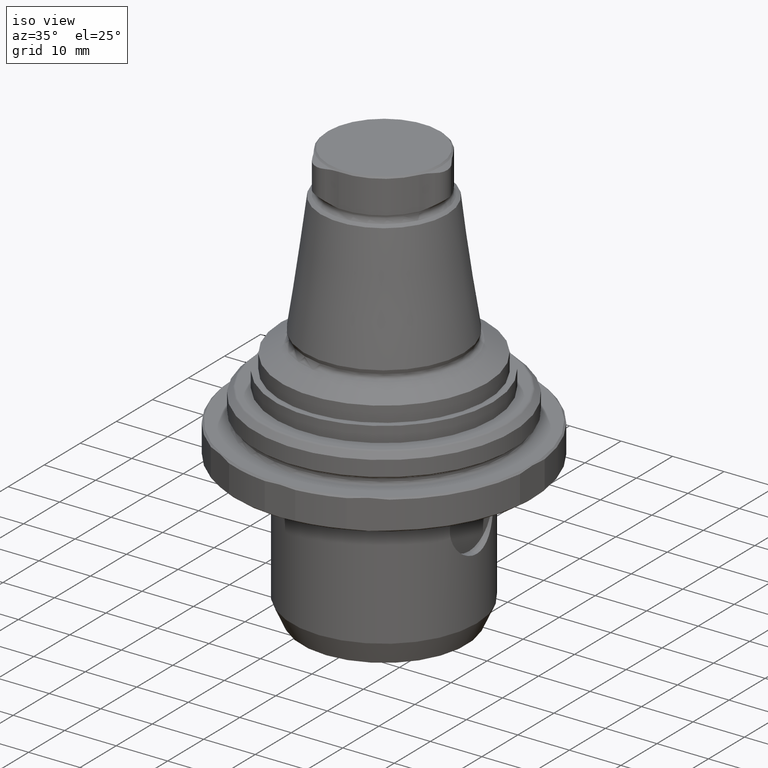
[diagram: clean part render]
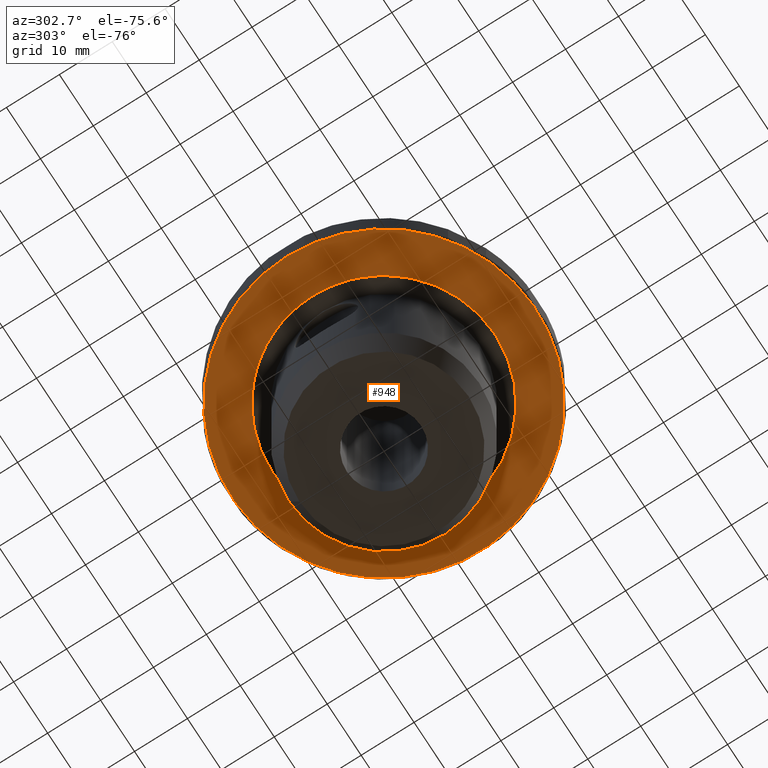
[diagram: tour spotlight — one face highlighted and labeled with its STEP entity id]
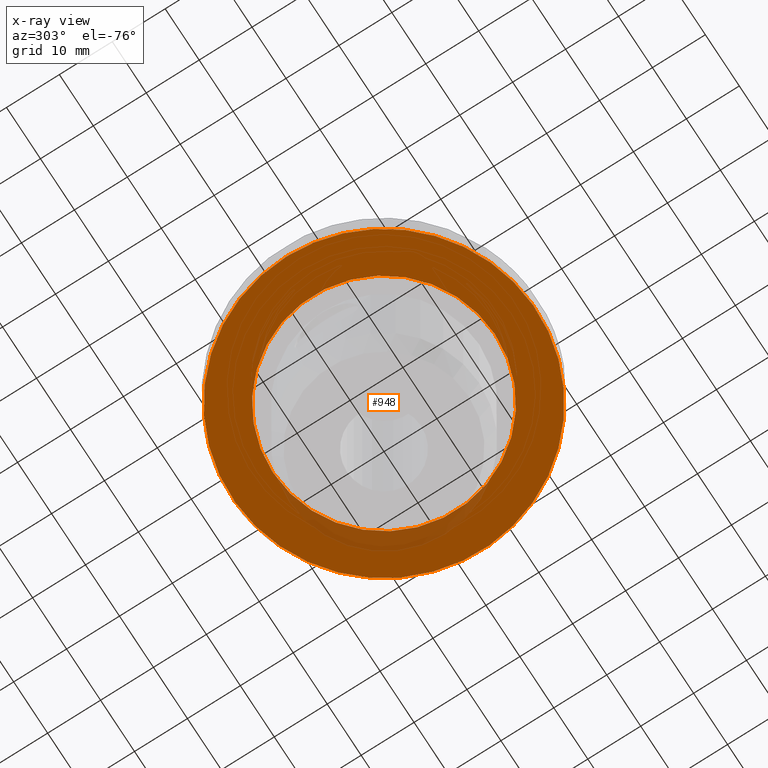
[diagram: x-ray of the same camera — body ghosted, this tour face saturated]
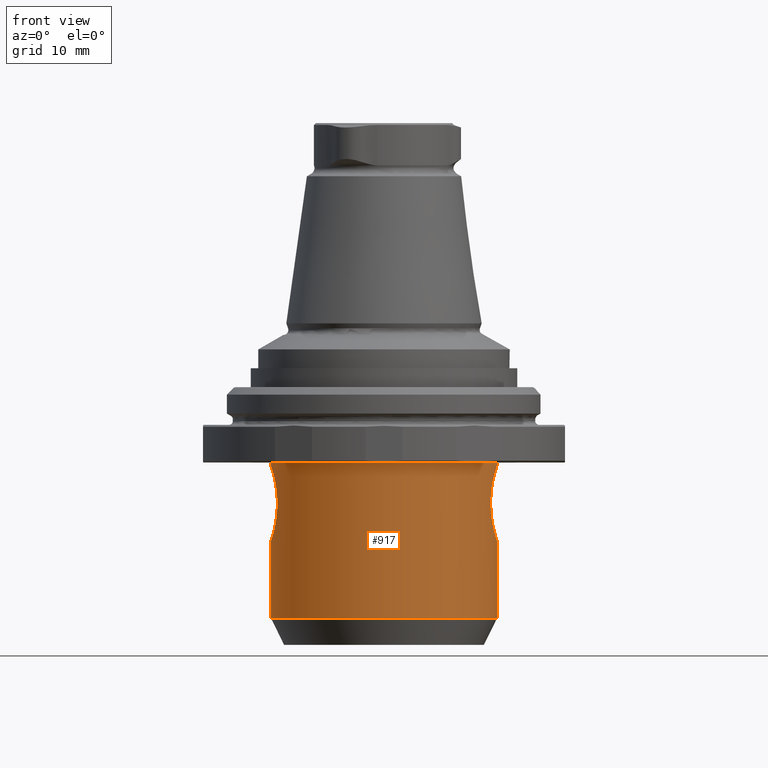
[diagram: tour spotlight — one face highlighted and labeled with its STEP entity id]
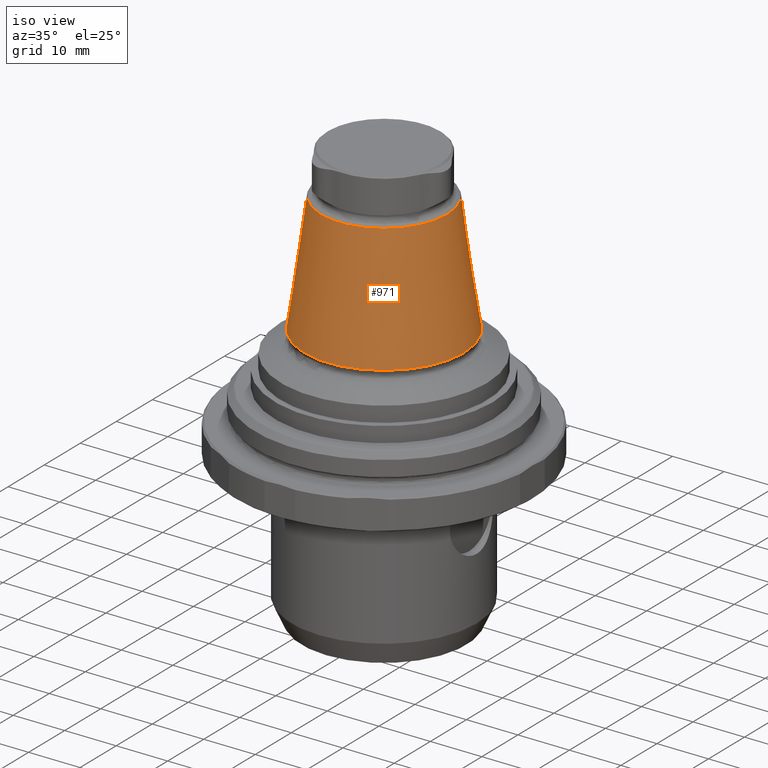
[diagram: tour spotlight — one face highlighted and labeled with its STEP entity id]
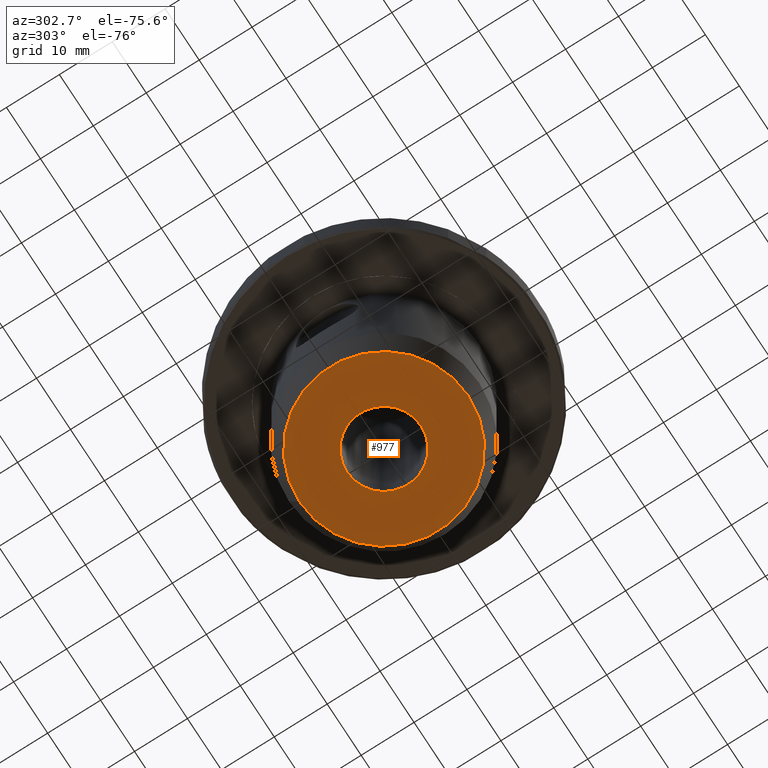
[diagram: tour spotlight — one face highlighted and labeled with its STEP entity id]
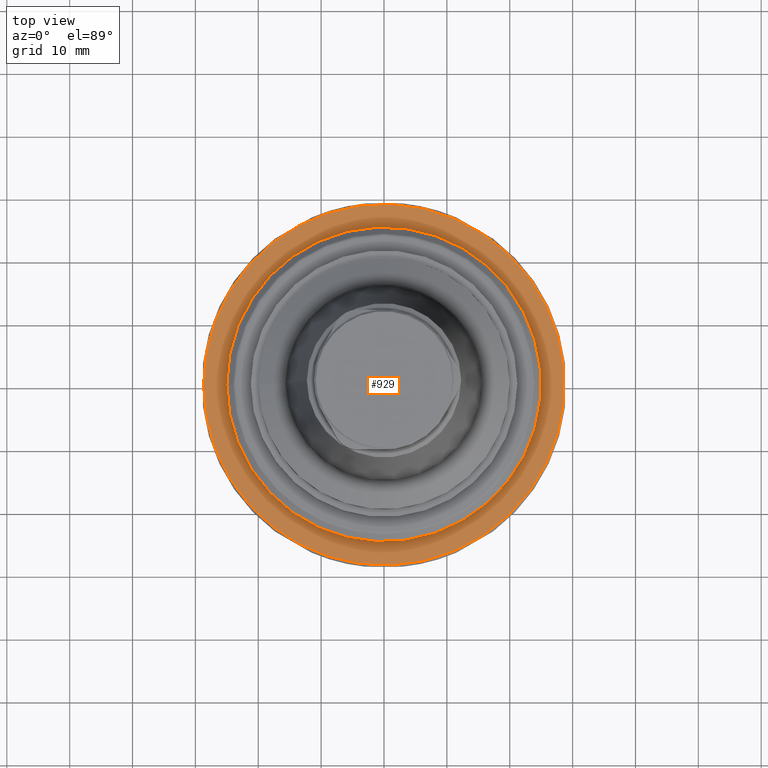
[diagram: tour spotlight — one face highlighted and labeled with its STEP entity id]
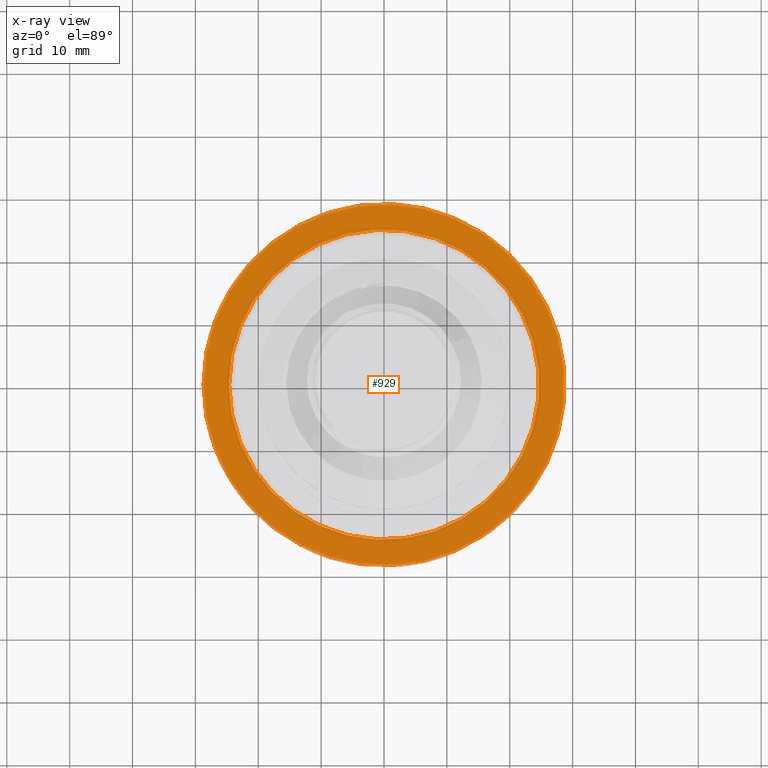
[diagram: x-ray of the same camera — body ghosted, this tour face saturated]
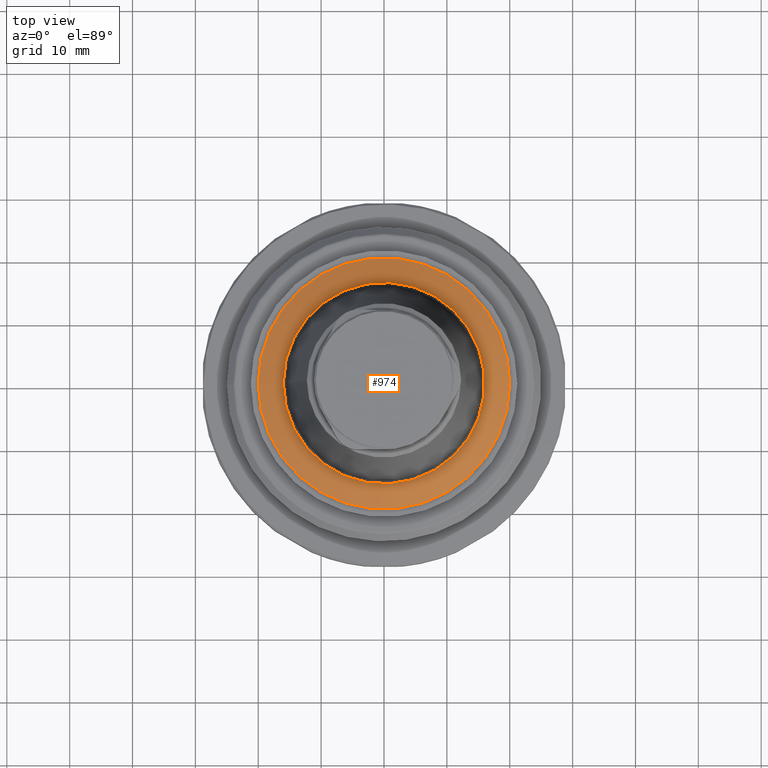
[diagram: tour spotlight — one face highlighted and labeled with its STEP entity id]
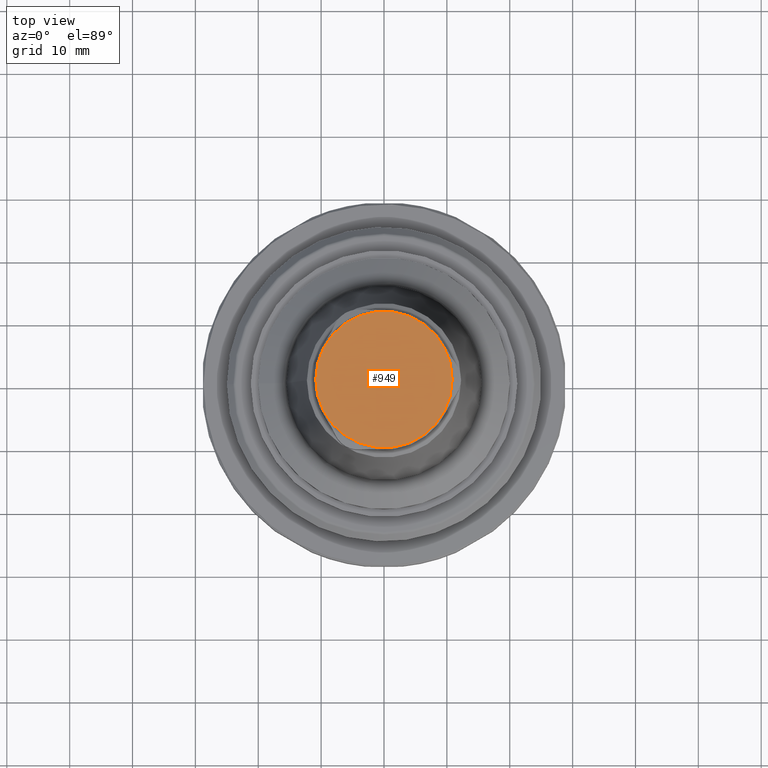
[diagram: tour spotlight — one face highlighted and labeled with its STEP entity id]
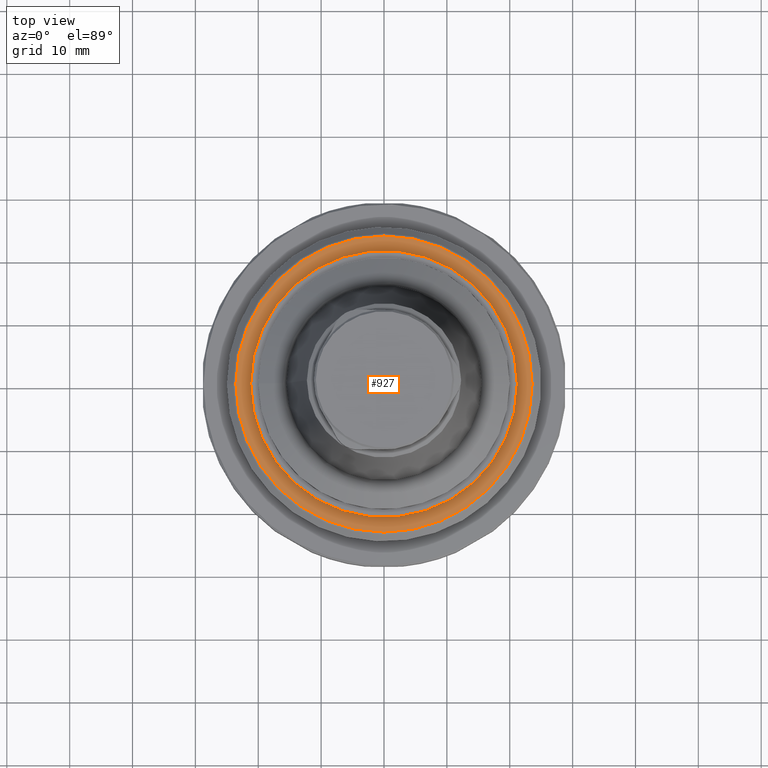
[diagram: tour spotlight — one face highlighted and labeled with its STEP entity id]
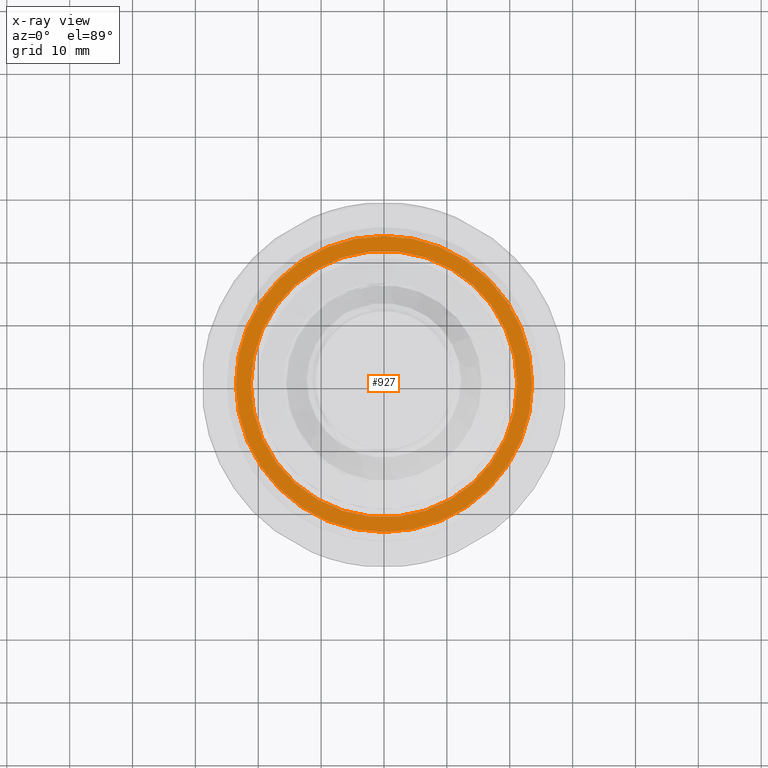
[diagram: x-ray of the same camera — body ghosted, this tour face saturated]
A machine part: a face-by-face anatomy tour. The part has 68 B-rep faces; the first image is the clean iso view, then the 8 largest visible faces are spotlighted one at a time (largest first), each with its STEP entity span.

Face 1 — auxiliary view, entity #948. An x-ray twin of the same camera follows (body ghosted, this face saturated) — the face is partly hidden behind the body. In plain terms, the highlighted planar face has unit normal (0, 0, 1).
Definition (entity closure, byte-faithful):
#87=PLANE('',#1061);
#147=CIRCLE('',#1060,28.7);
#148=CIRCLE('',#1062,21.0040707856479);
#299=ORIENTED_EDGE('',*,*,#493,.F.);
#300=ORIENTED_EDGE('',*,*,#492,.T.);
#492=EDGE_CURVE('',#603,#603,#147,.T.);
#493=EDGE_CURVE('',#604,#604,#148,.F.);
#603=VERTEX_POINT('',#1634);
#604=VERTEX_POINT('',#1637);
#737=EDGE_LOOP('',(#299));
#738=EDGE_LOOP('',(#300));
#837=FACE_BOUND('',#737,.T.);
#838=FACE_BOUND('',#738,.T.);
#948=ADVANCED_FACE('',(#837,#838),#87,.F.);
#1060=AXIS2_PLACEMENT_3D('',#1633,#1265,#1266);
#1061=AXIS2_PLACEMENT_3D('',#1635,#1267,#1268);
#1062=AXIS2_PLACEMENT_3D('',#1636,#1269,#1270);
#1265=DIRECTION('',(-5.20001084984554E-33,-4.76419527885826E-18,-1.));
#1266=DIRECTION('',(-1.,0.,0.));
#1267=DIRECTION('',(5.20001084984554E-33,4.76419527885826E-18,1.));
#1268=DIRECTION('',(1.,0.,0.));
#1269=DIRECTION('',(5.20001084984554E-33,4.76419527885826E-18,1.));
#1270=DIRECTION('',(0.,-1.,4.76419527885826E-18));
#1633=CARTESIAN_POINT('',(-3.12000650990732E-32,-2.85851716731495E-17,-6.99592921435212));
#1634=CARTESIAN_POINT('',(-28.7,-2.85851716731495E-17,-6.99592921435212));
#1635=CARTESIAN_POINT('',(-28.7,-2.85851716731495E-17,-6.99592921435211));
#1636=CARTESIAN_POINT('',(9.61602294533256E-15,1.93940177644747E-20,-6.99592921435211));
#1637=CARTESIAN_POINT('',(9.61602294533256E-15,-21.0040707856479,-6.99592921435211));

Face 2 — front view, entity #917. In plain terms, the highlighted cylindrical surface (bore or boss wall) has radius 18 mm, axis along (0, 0, -1).
Definition (entity closure, byte-faithful):
#116=CIRCLE('',#999,18.);
#117=CIRCLE('',#1000,18.);
#173=ORIENTED_EDGE('',*,*,#427,.F.);
#174=ORIENTED_EDGE('',*,*,#428,.T.);
#175=ORIENTED_EDGE('',*,*,#429,.F.);
#176=ORIENTED_EDGE('',*,*,#430,.T.);
#427=EDGE_CURVE('',#554,#554,#647,.T.);
#428=EDGE_CURVE('',#555,#555,#116,.T.);
#429=EDGE_CURVE('',#556,#556,#117,.T.);
#430=EDGE_CURVE('',#557,#557,#648,.T.);
#554=VERTEX_POINT('',#1424);
#555=VERTEX_POINT('',#1426);
#556=VERTEX_POINT('',#1428);
#557=VERTEX_POINT('',#1448);
#647=B_SPLINE_CURVE_WITH_KNOTS('',3,(#1405,#1406,#1407,#1408,#1409,#1410,
#1411,#1412,#1413,#1414,#1415,#1416,#1417,#1418,#1419,#1420,#1421,#1422,
#1423),.UNSPECIFIED.,.T.,.F.,(1,1,1,1,1,1,1,1,1,1,1,1,1,1,1,1,1,1,1,1,1,
1,1),(-0.00708470168974245,-0.0047231344598283,-0.00236156722991415,2.33560787339681E-19,
0.00236156722991415,0.0047231344598283,0.00708470168974245,0.0094462689196566,
0.0118078361495708,0.0141694033794849,0.0165309706093991,0.0188925378393132,
0.0212541050692274,0.0236156722991415,0.0259772395290557,0.0283388067589698,
0.030700373988884,0.0330619412187981,0.0354235084487123,0.0377850756786264,
0.0401466429085406,0.0425082101384547,0.0448697773683689),.UNSPECIFIED.);
#648=B_SPLINE_CURVE_WITH_KNOTS('',3,(#1429,#1430,#1431,#1432,#1433,#1434,
#1435,#1436,#1437,#1438,#1439,#1440,#1441,#1442,#1443,#1444,#1445,#1446,
#1447),.UNSPECIFIED.,.T.,.F.,(1,1,1,1,1,1,1,1,1,1,1,1,1,1,1,1,1,1,1,1,1,
1,1),(-0.00708698580279631,-0.00472465720186421,-0.0023623286009321,2.07366514660924E-18,
0.0023623286009321,0.0047246572018642,0.0070869858027963,0.00944931440372841,
0.0118116430046605,0.0141739716055926,0.0165363002065247,0.0188986288074568,
0.0212609574083889,0.023623286009321,0.0259856146102531,0.0283479432111852,
0.0307102718121173,0.0330726004130494,0.0354349290139815,0.0377972576149136,
0.0401595862158457,0.0425219148167778,0.0448842434177099),.UNSPECIFIED.);
#689=EDGE_LOOP('',(#173));
#690=EDGE_LOOP('',(#174));
#691=EDGE_LOOP('',(#175));
#692=EDGE_LOOP('',(#176));
#789=FACE_BOUND('',#689,.T.);
#790=FACE_BOUND('',#690,.T.);
#791=FACE_BOUND('',#691,.T.);
#792=FACE_BOUND('',#692,.T.);
#889=CYLINDRICAL_SURFACE('',#998,18.);
#917=ADVANCED_FACE('',(#789,#790,#791,#792),#889,.T.);
#998=AXIS2_PLACEMENT_3D('',#1404,#1125,#1126);
#999=AXIS2_PLACEMENT_3D('',#1425,#1127,#1128);
#1000=AXIS2_PLACEMENT_3D('',#1427,#1129,#1130);
#1125=DIRECTION('',(0.,0.,-1.));
#1126=DIRECTION('',(0.,1.,0.));
#1127=DIRECTION('',(1.27319154200133E-16,-7.79579225983867E-33,-1.));
#1128=DIRECTION('',(-1.,0.,-1.27319154200133E-16));
#1129=DIRECTION('',(0.,0.,-1.));
#1130=DIRECTION('',(0.,1.,0.));
#1404=CARTESIAN_POINT('',(0.,0.,-47.9959292143521));
#1405=CARTESIAN_POINT('',(-17.889710576669,2.37436773295693,-19.1800229364138));
#1406=CARTESIAN_POINT('',(-18.0551148958686,-0.000196721668237047,-19.6598839655699));
#1407=CARTESIAN_POINT('',(-17.8898298398564,-2.37358084628398,-19.1804412013061));
#1408=CARTESIAN_POINT('',(-17.4941715621497,-4.35273809991191,-17.8486602882034));
#1409=CARTESIAN_POINT('',(-17.0884728213579,-5.68015412581999,-15.8719154463857));
#1410=CARTESIAN_POINT('',(-16.9118299480978,-6.15922628696045,-13.5054829884364));
#1411=CARTESIAN_POINT('',(-17.087586968013,-5.68293198395303,-11.1312414745139));
#1412=CARTESIAN_POINT('',(-17.4949912914916,-4.35004750944791,-9.14798087570614));
#1413=CARTESIAN_POINT('',(-17.8900605955102,-2.3707486097815,-7.8190175617419));
#1414=CARTESIAN_POINT('',(-18.0548297420023,-0.00293705979919038,-7.34094195871963));
#1415=CARTESIAN_POINT('',(-17.8906194725714,2.36806755921502,-7.81721749510791));
#1416=CARTESIAN_POINT('',(-17.494797583745,4.35083021522607,-9.14860139880048));
#1417=CARTESIAN_POINT('',(-17.088057649307,5.68143183439361,-11.1295092779311));
#1418=CARTESIAN_POINT('',(-16.911823095961,6.1592436899101,-13.4992906585517));
#1419=CARTESIAN_POINT('',(-17.0880265007755,5.68159328416338,-15.8703667090484));
#1420=CARTESIAN_POINT('',(-17.4944232749279,4.35172689074807,-17.8496070202362));
#1421=CARTESIAN_POINT('',(-17.889710576669,2.37436773295693,-19.1800229364138));
#1422=CARTESIAN_POINT('',(-18.0551148958686,-0.000196721668237047,-19.6598839655699));
#1423=CARTESIAN_POINT('',(-17.8898298398564,-2.37358084628398,-19.1804412013061));
#1424=CARTESIAN_POINT('',(-18.,3.31413458633129E-16,-19.5));
#1425=CARTESIAN_POINT('',(0.,0.,-7.));
#1426=CARTESIAN_POINT('',(-18.,0.,-7.));
#1427=CARTESIAN_POINT('',(0.,0.,-31.7109861589809));
#1428=CARTESIAN_POINT('',(0.,18.,-31.7109861589809));
#1429=CARTESIAN_POINT('',(17.8894885199056,2.37495503398704,-19.1789471106745));
#1430=CARTESIAN_POINT('',(18.055221154206,-0.000202330218764912,-19.6658891915709));
#1431=CARTESIAN_POINT('',(17.8896268632704,-2.37414571311198,-19.1794397177996));
#1432=CARTESIAN_POINT('',(17.4952799454343,-4.34735750848469,-17.8371011075525));
#1433=CARTESIAN_POINT('',(17.0914175317597,-5.67151991483547,-15.8581770746456));
#1434=CARTESIAN_POINT('',(16.9119420857731,-6.15892095011146,-13.4941345133221));
#1435=CARTESIAN_POINT('',(17.084327966712,-5.69240779591079,-11.1169446242468));
#1436=CARTESIAN_POINT('',(17.4934395726579,-4.35716443011942,-9.13260267748579));
#1437=CARTESIAN_POINT('',(17.8901592184585,-2.37139947919001,-7.81141044809754));
#1438=CARTESIAN_POINT('',(18.0548154149428,-0.00228312850456839,-7.33915041057727));
#1439=CARTESIAN_POINT('',(17.8905785583381,2.3695001599707,-7.8100459864871));
#1440=CARTESIAN_POINT('',(17.4932370709725,4.35791329416311,-9.13335576447091));
#1441=CARTESIAN_POINT('',(17.0848491097876,5.69077450405614,-11.1147622735233));
#1442=CARTESIAN_POINT('',(16.9118741855073,6.15910495116715,-13.4885806289263));
#1443=CARTESIAN_POINT('',(17.091130177741,5.67252415209172,-15.8576883808685));
#1444=CARTESIAN_POINT('',(17.4956851944784,4.34567084238065,-17.8385886485611));
#1445=CARTESIAN_POINT('',(17.8894885199056,2.37495503398704,-19.1789471106745));
#1446=CARTESIAN_POINT('',(18.055221154206,-0.000202330218764912,-19.6658891915709));
#1447=CARTESIAN_POINT('',(17.8896268632704,-2.37414571311198,-19.1794397177996));
#1448=CARTESIAN_POINT('',(18.,2.13639202632682E-15,-19.5036572657929));

Face 3 — iso view, entity #971. In plain terms, the highlighted conical surface has half-angle 7.95 deg.
Definition (entity closure, byte-faithful):
#106=CONICAL_SURFACE('',#1100,15.5400379337869,0.13875367553355);
#163=CIRCLE('',#1099,12.2706905250473);
#164=CIRCLE('',#1101,15.5400379337869);
#402=ORIENTED_EDGE('',*,*,#544,.T.);
#403=ORIENTED_EDGE('',*,*,#545,.F.);
#544=EDGE_CURVE('',#637,#637,#163,.T.);
#545=EDGE_CURVE('',#638,#638,#164,.T.);
#637=VERTEX_POINT('',#1821);
#638=VERTEX_POINT('',#1824);
#764=EDGE_LOOP('',(#402));
#765=EDGE_LOOP('',(#403));
#864=FACE_BOUND('',#764,.T.);
#865=FACE_BOUND('',#765,.T.);
#971=ADVANCED_FACE('',(#864,#865),#106,.T.);
#1099=AXIS2_PLACEMENT_3D('',#1820,#1355,#1356);
#1100=AXIS2_PLACEMENT_3D('',#1822,#1357,#1358);
#1101=AXIS2_PLACEMENT_3D('',#1823,#1359,#1360);
#1355=DIRECTION('',(1.27319154200133E-16,-7.79579225983867E-33,-1.));
#1356=DIRECTION('',(-1.,6.12303176911189E-17,-1.27319154200133E-16));
#1357=DIRECTION('',(1.27319154200133E-16,-7.79579225983867E-33,-1.));
#1358=DIRECTION('',(-1.,6.12303176911189E-17,-1.27319154200133E-16));
#1359=DIRECTION('',(1.27319154200133E-16,-7.79579225983867E-33,-1.));
#1360=DIRECTION('',(-1.,6.12303176911189E-17,-1.27319154200133E-16));
#1820=CARTESIAN_POINT('',(1.140152038231E-15,-6.98118715170611E-32,38.549));
#1821=CARTESIAN_POINT('',(-12.2706905250473,7.51338279138048E-16,38.549));
#1822=CARTESIAN_POINT('',(4.12079965727843E-15,-2.52317872156612E-31,15.1381657247255));
#1823=CARTESIAN_POINT('',(4.12079965727843E-15,-2.52317872156612E-31,15.1381657247255));
#1824=CARTESIAN_POINT('',(-15.5400379337869,9.51521459617813E-16,15.1381657247255));

Face 4 — auxiliary view, entity #977. In plain terms, the highlighted planar face has unit normal (0, 0, -1).
Definition (entity closure, byte-faithful):
#89=PLANE('',#1111);
#168=CIRCLE('',#1110,16.);
#169=CIRCLE('',#1112,7.);
#414=ORIENTED_EDGE('',*,*,#550,.T.);
#415=ORIENTED_EDGE('',*,*,#549,.T.);
#549=EDGE_CURVE('',#642,#642,#168,.T.);
#550=EDGE_CURVE('',#643,#643,#169,.T.);
#642=VERTEX_POINT('',#1837);
#643=VERTEX_POINT('',#1840);
#776=EDGE_LOOP('',(#414));
#777=EDGE_LOOP('',(#415));
#876=FACE_BOUND('',#776,.T.);
#877=FACE_BOUND('',#777,.T.);
#977=ADVANCED_FACE('',(#876,#877),#89,.T.);
#1110=AXIS2_PLACEMENT_3D('',#1836,#1377,#1378);
#1111=AXIS2_PLACEMENT_3D('',#1838,#1379,#1380);
#1112=AXIS2_PLACEMENT_3D('',#1839,#1381,#1382);
#1377=DIRECTION('',(0.,0.,-1.));
#1378=DIRECTION('',(0.,1.,0.));
#1379=DIRECTION('',(0.,0.,-1.));
#1380=DIRECTION('',(0.,1.,0.));
#1381=DIRECTION('',(0.,0.,1.));
#1382=DIRECTION('',(0.,1.,0.));
#1836=CARTESIAN_POINT('',(0.,0.,-36.));
#1837=CARTESIAN_POINT('',(0.,16.,-36.));
#1838=CARTESIAN_POINT('',(0.,16.,-36.));
#1839=CARTESIAN_POINT('',(0.,0.,-36.));
#1840=CARTESIAN_POINT('',(0.,7.,-36.));

Face 5 — top view, entity #929. An x-ray twin of the same camera follows (body ghosted, this face saturated) — the face is partly hidden behind the body. In plain terms, the highlighted planar face has unit normal (-0, -0, -1).
Definition (entity closure, byte-faithful):
#78=PLANE('',#1024);
#129=CIRCLE('',#1023,24.65);
#130=CIRCLE('',#1025,28.7);
#199=ORIENTED_EDGE('',*,*,#442,.T.);
#200=ORIENTED_EDGE('',*,*,#443,.F.);
#442=EDGE_CURVE('',#569,#569,#129,.T.);
#443=EDGE_CURVE('',#570,#570,#130,.T.);
#569=VERTEX_POINT('',#1483);
#570=VERTEX_POINT('',#1486);
#715=EDGE_LOOP('',(#199));
#716=EDGE_LOOP('',(#200));
#815=FACE_BOUND('',#715,.T.);
#816=FACE_BOUND('',#716,.T.);
#929=ADVANCED_FACE('',(#815,#816),#78,.F.);
#1023=AXIS2_PLACEMENT_3D('',#1482,#1175,#1176);
#1024=AXIS2_PLACEMENT_3D('',#1484,#1177,#1178);
#1025=AXIS2_PLACEMENT_3D('',#1485,#1179,#1180);
#1175=DIRECTION('',(-5.20001084984554E-33,-4.76419527885826E-18,-1.));
#1176=DIRECTION('',(-1.,0.,0.));
#1177=DIRECTION('',(-5.20001084984554E-33,-4.76419527885826E-18,-1.));
#1178=DIRECTION('',(-1.,0.,0.));
#1179=DIRECTION('',(-5.20001084984554E-33,-4.76419527885826E-18,-1.));
#1180=DIRECTION('',(-1.,0.,0.));
#1482=CARTESIAN_POINT('',(0.,0.,-0.995929214352116));
#1483=CARTESIAN_POINT('',(-24.65,0.,-0.995929214352116));
#1484=CARTESIAN_POINT('',(-24.65,0.,-0.995929214352116));
#1485=CARTESIAN_POINT('',(0.,0.,-0.995929214352116));
#1486=CARTESIAN_POINT('',(-28.7,0.,-0.995929214352116));

Face 6 — top view, entity #974. In plain terms, the highlighted conical surface has half-angle 60 deg.
Definition (entity closure, byte-faithful):
#108=CONICAL_SURFACE('',#1106,20.,1.0471975511966);
#118=CIRCLE('',#1002,20.);
#166=CIRCLE('',#1105,16.0162831425916);
#408=ORIENTED_EDGE('',*,*,#547,.T.);
#409=ORIENTED_EDGE('',*,*,#431,.F.);
#431=EDGE_CURVE('',#558,#558,#118,.T.);
#547=EDGE_CURVE('',#640,#640,#166,.T.);
#558=VERTEX_POINT('',#1451);
#640=VERTEX_POINT('',#1830);
#770=EDGE_LOOP('',(#408));
#771=EDGE_LOOP('',(#409));
#870=FACE_BOUND('',#770,.T.);
#871=FACE_BOUND('',#771,.T.);
#974=ADVANCED_FACE('',(#870,#871),#108,.T.);
#1002=AXIS2_PLACEMENT_3D('',#1450,#1133,#1134);
#1105=AXIS2_PLACEMENT_3D('',#1829,#1367,#1368);
#1106=AXIS2_PLACEMENT_3D('',#1831,#1369,#1370);
#1133=DIRECTION('',(1.27319154200133E-16,-7.79579225983867E-33,-1.));
#1134=DIRECTION('',(-1.,6.12303176911189E-17,-1.27319154200133E-16));
#1367=DIRECTION('',(1.27319154200133E-16,-7.79579225983867E-33,-1.));
#1368=DIRECTION('',(-1.,6.12303176911189E-17,-1.27319154200133E-16));
#1369=DIRECTION('',(1.27319154200133E-16,-7.79579225983867E-33,-1.));
#1370=DIRECTION('',(-1.,6.12303176911189E-17,-1.27319154200133E-16));
#1450=CARTESIAN_POINT('',(4.64714912830484E-15,-2.84546417484111E-31,11.0040707856479));
#1451=CARTESIAN_POINT('',(-20.,1.22460635382238E-15,11.0040707856479));
#1829=CARTESIAN_POINT('',(4.35431507364453E-15,-2.66616095286482E-31,13.3040707856479));
#1830=CARTESIAN_POINT('',(-16.0162831425916,9.80682105051795E-16,13.3040707856479));
#1831=CARTESIAN_POINT('',(4.64714912830484E-15,-2.84546417484111E-31,11.0040707856479));

Face 7 — top view, entity #949. In plain terms, the highlighted planar face has unit normal (-0, 0, 1).
Definition (entity closure, byte-faithful):
#88=PLANE('',#1063);
#149=CIRCLE('',#1064,10.85);
#301=ORIENTED_EDGE('',*,*,#494,.F.);
#494=EDGE_CURVE('',#605,#605,#149,.T.);
#605=VERTEX_POINT('',#1640);
#739=EDGE_LOOP('',(#301));
#839=FACE_BOUND('',#739,.T.);
#949=ADVANCED_FACE('',(#839),#88,.T.);
#1063=AXIS2_PLACEMENT_3D('',#1638,#1271,#1272);
#1064=AXIS2_PLACEMENT_3D('',#1639,#1273,#1274);
#1271=DIRECTION('',(-1.27319154200133E-16,7.79579225983867E-33,1.));
#1272=DIRECTION('',(1.,-6.12303176911189E-17,1.27319154200133E-16));
#1273=DIRECTION('',(1.27319154200133E-16,-7.79579225983867E-33,-1.));
#1274=DIRECTION('',(-1.,6.12303176911189E-17,-1.27319154200133E-16));
#1638=CARTESIAN_POINT('',(-10.85,6.6434894694864E-16,47.));
#1639=CARTESIAN_POINT('',(6.41778660856836E-17,-3.92963112916449E-33,47.));
#1640=CARTESIAN_POINT('',(-10.85,6.6434894694864E-16,47.));

Face 8 — top view, entity #927. An x-ray twin of the same camera follows (body ghosted, this face saturated) — the face is partly hidden behind the body. In plain terms, the highlighted planar face has unit normal (-0, -0, -1).
Definition (entity closure, byte-faithful):
#77=PLANE('',#1021);
#126=CIRCLE('',#1016,23.5524710292422);
#127=CIRCLE('',#1018,21.2);
#195=ORIENTED_EDGE('',*,*,#440,.F.);
#196=ORIENTED_EDGE('',*,*,#439,.F.);
#439=EDGE_CURVE('',#566,#566,#126,.T.);
#440=EDGE_CURVE('',#567,#567,#127,.T.);
#566=VERTEX_POINT('',#1473);
#567=VERTEX_POINT('',#1476);
#711=EDGE_LOOP('',(#195));
#712=EDGE_LOOP('',(#196));
#811=FACE_BOUND('',#711,.T.);
#812=FACE_BOUND('',#712,.T.);
#927=ADVANCED_FACE('',(#811,#812),#77,.F.);
#1016=AXIS2_PLACEMENT_3D('',#1472,#1161,#1162);
#1018=AXIS2_PLACEMENT_3D('',#1475,#1165,#1166);
#1021=AXIS2_PLACEMENT_3D('',#1480,#1171,#1172);
#1161=DIRECTION('',(-5.20001084984554E-33,-4.76419527885826E-18,-1.));
#1162=DIRECTION('',(-1.,0.,0.));
#1165=DIRECTION('',(5.21126297509514E-18,5.34134232284762E-17,1.));
#1166=DIRECTION('',(1.,-6.12303176911188E-17,-1.08491142720197E-17));
#1171=DIRECTION('',(-5.20001084984554E-33,-4.76419527885826E-18,-1.));
#1172=DIRECTION('',(-1.,0.,0.));
#1472=CARTESIAN_POINT('',(3.12000650990733E-32,2.85851716731496E-17,5.00407078564789));
#1473=CARTESIAN_POINT('',(-23.5524710292422,2.85851716731496E-17,5.00407078564789));
#1475=CARTESIAN_POINT('',(5.41106405350563E-15,-3.36291933183207E-31,5.00407078564789));
#1476=CARTESIAN_POINT('',(21.2,-1.29808273505172E-15,5.00407078564789));
#1480=CARTESIAN_POINT('',(3.12000650990733E-32,2.85851716731496E-17,5.00407078564789));